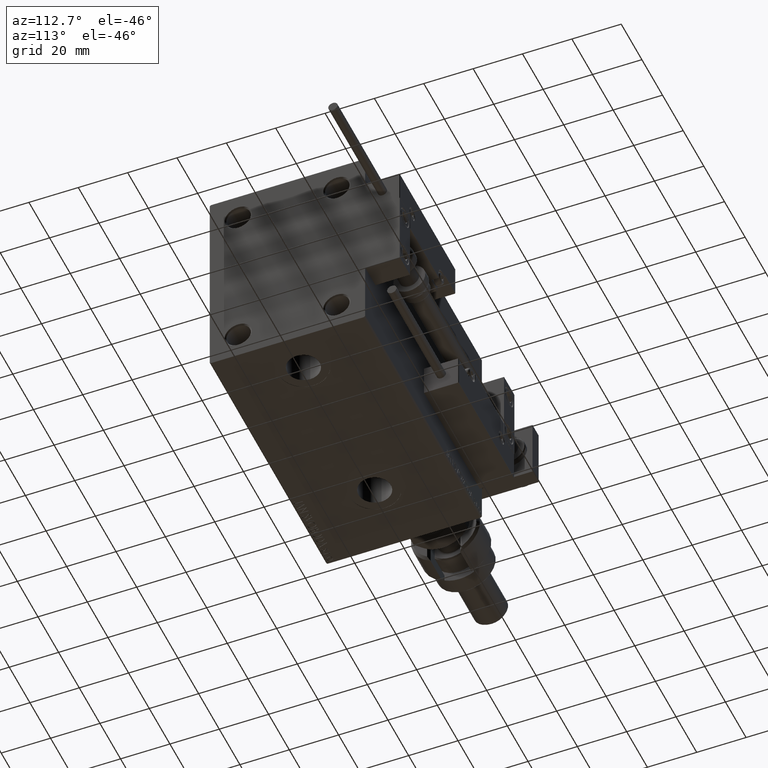
[diagram: clean part render]
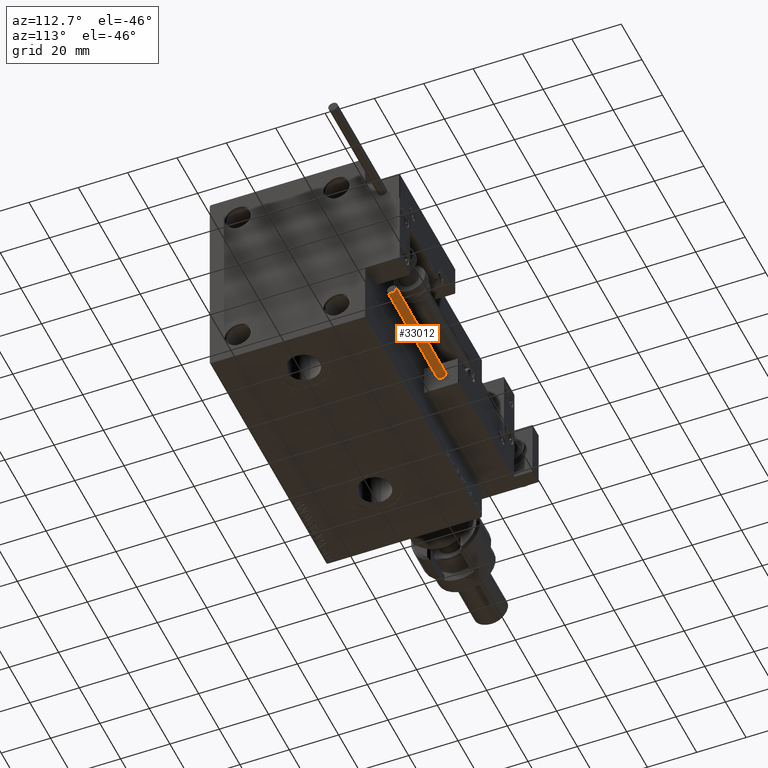
[diagram: same view with one face highlighted and labeled with its STEP entity id]
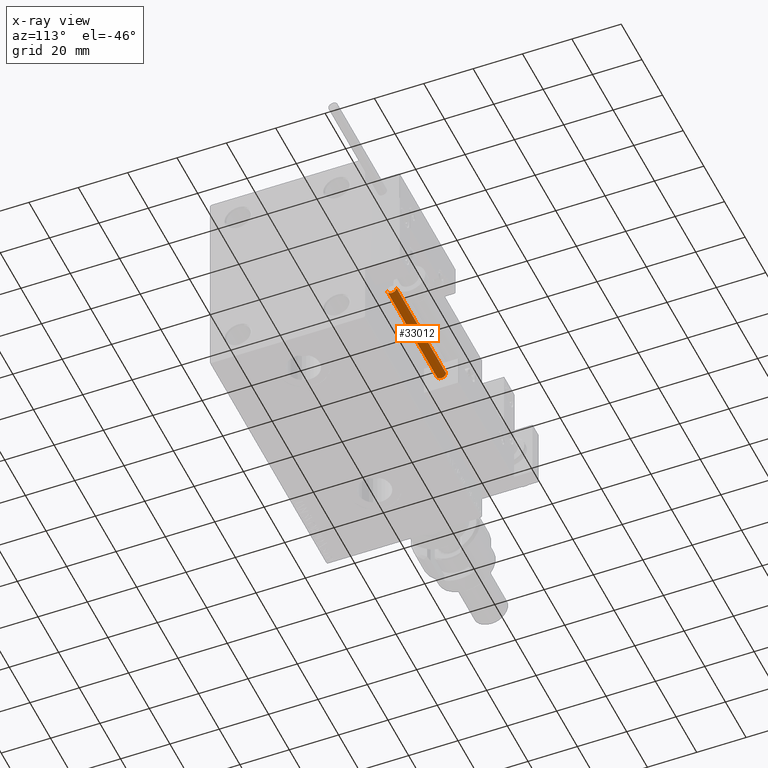
[diagram: x-ray of the same camera — body ghosted, the highlighted face saturated]
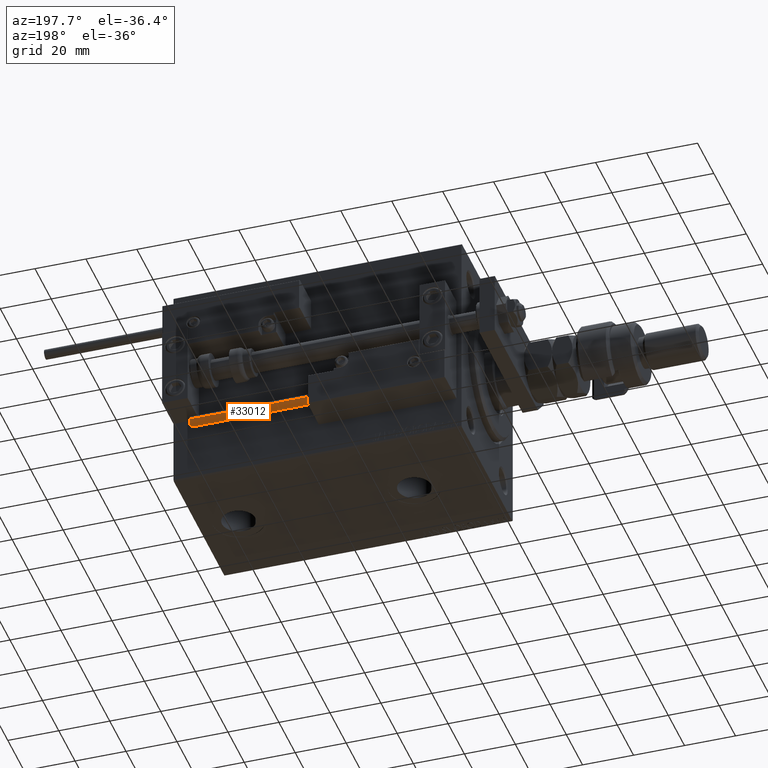
[diagram: same view with one face highlighted and labeled with its STEP entity id]
A machine part, auxiliary view. The second image highlights one B-rep face of the part: STEP entity #33012.
The next image is the same camera in x-ray: the body ghosted, the highlighted face saturated — about 0% of this face is hidden behind the body in this view.
A second angle (auxiliary view) of the same face is appended — the face is thin or edge-on in the first view.
In plain terms, the highlighted cylindrical surface (edge-blend (fillet) strip) has radius 1.9 mm, axis along (-1, 0, 0).
Its self-contained STEP definition (entity closure, byte-faithful):
#87 = CARTESIAN_POINT ( 'NONE',  ( 1.899999999999999467, 2.326828918379970872E-16, 48.00000000000000000 ) ) ;
#1113 = VECTOR ( 'NONE', #39800, 1000.000000000000000 ) ;
#1934 = VERTEX_POINT ( 'NONE', #6548 ) ;
#6548 = CARTESIAN_POINT ( 'NONE',  ( -1.899999999999999467, 0.000000000000000000, 48.00000000000000000 ) ) ;
#7913 = EDGE_LOOP ( 'NONE', ( #25907, #53337, #46813, #27284 ) ) ;
#7994 = DIRECTION ( 'NONE',  ( -0.000000000000000000, -0.000000000000000000, -1.000000000000000000 ) ) ;
#8156 = CIRCLE ( 'NONE', #46592, 1.899999999999999467 ) ;
#11791 = CARTESIAN_POINT ( 'NONE',  ( -1.899999999999999467, 0.000000000000000000, 0.000000000000000000 ) ) ;
#13430 = CARTESIAN_POINT ( 'NONE',  ( -1.899999999999999467, 0.000000000000000000, 48.00000000000000000 ) ) ;
#18542 = LINE ( 'NONE', #27489, #1113 ) ;
#23321 = EDGE_CURVE ( 'NONE', #1934, #47970, #51796, .T. ) ;
#23452 = AXIS2_PLACEMENT_3D ( 'NONE', #41296, #7994, #28966 ) ;
#25466 = CIRCLE ( 'NONE', #28152, 1.899999999999999467 ) ;
#25907 = ORIENTED_EDGE ( 'NONE', *, *, #37973, .F. ) ;
#26249 = CARTESIAN_POINT ( 'NONE',  ( 1.899999999999999467, 2.326828918379970872E-16, 0.000000000000000000 ) ) ;
#27284 = ORIENTED_EDGE ( 'NONE', *, *, #31321, .T. ) ;
#27489 = CARTESIAN_POINT ( 'NONE',  ( 1.899999999999999467, 2.326828918379970872E-16, 48.00000000000000000 ) ) ;
#28152 = AXIS2_PLACEMENT_3D ( 'NONE', #51584, #51868, #38393 ) ;
#28966 = DIRECTION ( 'NONE',  ( -1.000000000000000000, 0.000000000000000000, 0.000000000000000000 ) ) ;
#30476 = DIRECTION ( 'NONE',  ( -0.000000000000000000, -0.000000000000000000, -1.000000000000000000 ) ) ;
#31321 = EDGE_CURVE ( 'NONE', #47970, #31846, #8156, .T. ) ;
#31846 = VERTEX_POINT ( 'NONE', #26249 ) ;
#33012 = ADVANCED_FACE ( 'NONE', ( #45510 ), #45779, .T. ) ;
#37535 = CARTESIAN_POINT ( 'NONE',  ( 0.000000000000000000, 0.000000000000000000, 0.000000000000000000 ) ) ;
#37973 = EDGE_CURVE ( 'NONE', #45324, #31846, #18542, .T. ) ;
#38393 = DIRECTION ( 'NONE',  ( 1.000000000000000000, 0.000000000000000000, 0.000000000000000000 ) ) ;
#39800 = DIRECTION ( 'NONE',  ( -0.000000000000000000, -0.000000000000000000, -1.000000000000000000 ) ) ;
#41296 = CARTESIAN_POINT ( 'NONE',  ( 0.000000000000000000, 0.000000000000000000, 48.00000000000000000 ) ) ;
#41731 = DIRECTION ( 'NONE',  ( 1.000000000000000000, 0.000000000000000000, 0.000000000000000000 ) ) ;
#43238 = EDGE_CURVE ( 'NONE', #1934, #45324, #25466, .T. ) ;
#45324 = VERTEX_POINT ( 'NONE', #87 ) ;
#45510 = FACE_OUTER_BOUND ( 'NONE', #7913, .T. ) ;
#45779 = CYLINDRICAL_SURFACE ( 'NONE', #23452, 1.899999999999999467 ) ;
#46592 = AXIS2_PLACEMENT_3D ( 'NONE', #37535, #50165, #41731 ) ;
#46813 = ORIENTED_EDGE ( 'NONE', *, *, #23321, .T. ) ;
#47970 = VERTEX_POINT ( 'NONE', #11791 ) ;
#50165 = DIRECTION ( 'NONE',  ( 0.000000000000000000, 0.000000000000000000, 1.000000000000000000 ) ) ;
#51584 = CARTESIAN_POINT ( 'NONE',  ( 0.000000000000000000, 0.000000000000000000, 48.00000000000000000 ) ) ;
#51796 = LINE ( 'NONE', #13430, #51835 ) ;
#51835 = VECTOR ( 'NONE', #30476, 1000.000000000000000 ) ;
#51868 = DIRECTION ( 'NONE',  ( 0.000000000000000000, 0.000000000000000000, 1.000000000000000000 ) ) ;
#53337 = ORIENTED_EDGE ( 'NONE', *, *, #43238, .F. ) ;